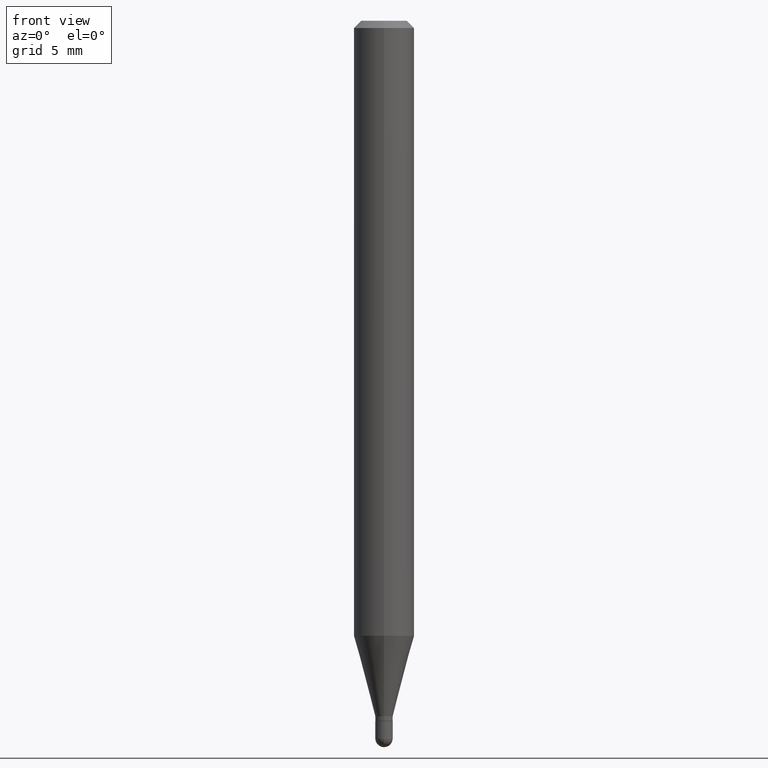
[diagram: clean part render]
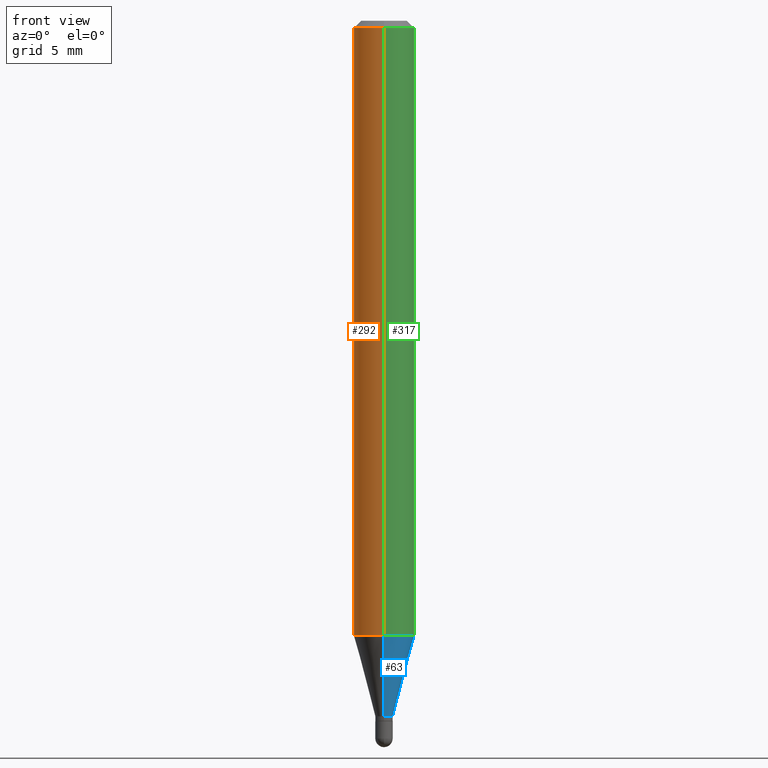
[diagram: same view with three faces highlighted in distinct colors, each labeled with its STEP entity id]
A machine part, front view with three faces highlighted in distinct colors.
Their STEP definitions:

[orange] entity #292 — the highlighted cylindrical surface (edge-blend (fillet) strip) has radius 1.5875 mm, axis along (-0, 0, 1).
#21 = AXIS2_PLACEMENT_3D ( 'NONE', #474, #358, #278 ) ;
#24 = CARTESIAN_POINT ( 'NONE',  ( -4.364351673553912750E-16, -0.06250000000000005551, -0.01499999999999979128 ) ) ;
#35 = CARTESIAN_POINT ( 'NONE',  ( 3.668220713917625548E-31, -5.237196940624055972E-17, -0.01500000000000000812 ) ) ;
#40 = ORIENTED_EDGE ( 'NONE', *, *, #200, .F. ) ;
#53 = VECTOR ( 'NONE', #494, 39.37007874015748143 ) ;
#100 = VERTEX_POINT ( 'NONE', #24 ) ;
#136 = EDGE_CURVE ( 'NONE', #236, #100, #328, .T. ) ;
#143 = CARTESIAN_POINT ( 'NONE',  ( 4.440892098500937762E-16, 0.06249999999999993755, -0.01500000000000022669 ) ) ;
#148 = CARTESIAN_POINT ( 'NONE',  ( -4.364351673553916201E-16, -0.06250000000000000000, 2.182165391926688591E-16 ) ) ;
#149 = DIRECTION ( 'NONE',  ( -6.982962677686265922E-15, -1.000000000000000000, 3.483106191921935554E-15 ) ) ;
#190 = ORIENTED_EDGE ( 'NONE', *, *, #502, .T. ) ;
#200 = EDGE_CURVE ( 'NONE', #305, #236, #421, .T. ) ;
#222 = EDGE_CURVE ( 'NONE', #433, #100, #455, .T. ) ;
#229 = CARTESIAN_POINT ( 'NONE',  ( 0.000000000000000000, 0.000000000000000000, 0.000000000000000000 ) ) ;
#230 = DIRECTION ( 'NONE',  ( -2.445480475945082204E-29, 3.491464627082701746E-15, 1.000000000000000000 ) ) ;
#236 = VERTEX_POINT ( 'NONE', #143 ) ;
#241 = CARTESIAN_POINT ( 'NONE',  ( -4.364351673553606573E-16, -0.06250000000000444089, -1.269923739063185453 ) ) ;
#249 = VECTOR ( 'NONE', #426, 39.37007874015748143 ) ;
#259 = CARTESIAN_POINT ( 'NONE',  ( 4.440892098500625669E-16, 0.06250000000000000000, -2.182165391926688591E-16 ) ) ;
#278 = DIRECTION ( 'NONE',  ( -6.982962677686265922E-15, -1.000000000000000000, 4.370956789862821150E-15 ) ) ;
#292 = ADVANCED_FACE ( 'NONE', ( #419 ), #341, .T. ) ;
#305 = VERTEX_POINT ( 'NONE', #382 ) ;
#328 = CIRCLE ( 'NONE', #437, 0.06250000000000000000 ) ;
#340 = CIRCLE ( 'NONE', #21, 0.06250000000000000000 ) ;
#341 = CYLINDRICAL_SURFACE ( 'NONE', #447, 0.06250000000000000000 ) ;
#358 = DIRECTION ( 'NONE',  ( -2.445480475945082204E-29, 3.491464627082701746E-15, 1.000000000000000000 ) ) ;
#381 = DIRECTION ( 'NONE',  ( -6.982962677686265922E-15, -1.000000000000000000, 3.491464627082701746E-15 ) ) ;
#382 = CARTESIAN_POINT ( 'NONE',  ( 4.440892098500933817E-16, 0.06249999999999555217, -1.269923739063185897 ) ) ;
#419 = FACE_OUTER_BOUND ( 'NONE', #469, .T. ) ;
#421 = LINE ( 'NONE', #259, #249 ) ;
#426 = DIRECTION ( 'NONE',  ( -2.445480475945082204E-29, 3.491464627082701746E-15, 1.000000000000000000 ) ) ;
#433 = VERTEX_POINT ( 'NONE', #241 ) ;
#435 = ORIENTED_EDGE ( 'NONE', *, *, #222, .T. ) ;
#437 = AXIS2_PLACEMENT_3D ( 'NONE', #35, #505, #149 ) ;
#447 = AXIS2_PLACEMENT_3D ( 'NONE', #229, #230, #381 ) ;
#455 = LINE ( 'NONE', #148, #53 ) ;
#469 = EDGE_LOOP ( 'NONE', ( #40, #190, #435, #508 ) ) ;
#474 = CARTESIAN_POINT ( 'NONE',  ( 3.105573709818197943E-29, -4.433893814031715891E-15, -1.269923739063185675 ) ) ;
#494 = DIRECTION ( 'NONE',  ( -2.445480475945082204E-29, 3.491464627082701746E-15, 1.000000000000000000 ) ) ;
#502 = EDGE_CURVE ( 'NONE', #305, #433, #340, .T. ) ;
#505 = DIRECTION ( 'NONE',  ( -2.445480475945082204E-29, 3.491464627082701746E-15, 1.000000000000000000 ) ) ;
#508 = ORIENTED_EDGE ( 'NONE', *, *, #136, .F. ) ;

[blue] entity #63 — the highlighted conical surface has half-angle 15 deg.
#14 = CARTESIAN_POINT ( 'NONE',  ( 3.511709963457139332E-29, -5.013743204490759827E-15, -1.436000000000000165 ) ) ;
#44 = VERTEX_POINT ( 'NONE', #283 ) ;
#63 = ADVANCED_FACE ( 'NONE', ( #410 ), #478, .T. ) ;
#74 = EDGE_CURVE ( 'NONE', #373, #305, #248, .T. ) ;
#114 = DIRECTION ( 'NONE',  ( -2.445480475945082204E-29, 3.491464627082701746E-15, 1.000000000000000000 ) ) ;
#121 = ORIENTED_EDGE ( 'NONE', *, *, #161, .F. ) ;
#128 = EDGE_LOOP ( 'NONE', ( #258, #332, #121, #416 ) ) ;
#129 = DIRECTION ( 'NONE',  ( -1.807323732225332900E-15, -0.2588190451025185745, 0.9659258262890689783 ) ) ;
#131 = DIRECTION ( 'NONE',  ( -2.445480475945082204E-29, 3.491464627082701746E-15, 1.000000000000000000 ) ) ;
#132 = DIRECTION ( 'NONE',  ( -2.445480475945082204E-29, 3.491464627082701746E-15, 1.000000000000000000 ) ) ;
#161 = EDGE_CURVE ( 'NONE', #433, #305, #498, .T. ) ;
#169 = DIRECTION ( 'NONE',  ( -6.982962677686265133E-15, -1.000000000000000000, 0.000000000000000000 ) ) ;
#183 = AXIS2_PLACEMENT_3D ( 'NONE', #188, #114, #457 ) ;
#188 = CARTESIAN_POINT ( 'NONE',  ( 3.105573709818197943E-29, -4.433893814031715891E-15, -1.269923739063185675 ) ) ;
#207 = LINE ( 'NONE', #362, #444 ) ;
#241 = CARTESIAN_POINT ( 'NONE',  ( -4.364351673553606573E-16, -0.06250000000000444089, -1.269923739063185453 ) ) ;
#248 = LINE ( 'NONE', #294, #321 ) ;
#258 = ORIENTED_EDGE ( 'NONE', *, *, #323, .T. ) ;
#266 = AXIS2_PLACEMENT_3D ( 'NONE', #14, #132, #482 ) ;
#283 = CARTESIAN_POINT ( 'NONE',  ( -1.256933281983171216E-16, -0.01800000000000493566, -1.436000000000000165 ) ) ;
#290 = AXIS2_PLACEMENT_3D ( 'NONE', #486, #131, #169 ) ;
#291 = DIRECTION ( 'NONE',  ( 1.839019923739603076E-15, 0.2588190451025253469, 0.9659258262890670910 ) ) ;
#294 = CARTESIAN_POINT ( 'NONE',  ( 1.278976924368525858E-16, 0.01799999999999490896, -1.436000000000000165 ) ) ;
#305 = VERTEX_POINT ( 'NONE', #382 ) ;
#321 = VECTOR ( 'NONE', #291, 39.37007874015748143 ) ;
#323 = EDGE_CURVE ( 'NONE', #44, #373, #499, .T. ) ;
#332 = ORIENTED_EDGE ( 'NONE', *, *, #74, .T. ) ;
#362 = CARTESIAN_POINT ( 'NONE',  ( -1.256933281983171216E-16, -0.01800000000000493566, -1.436000000000000165 ) ) ;
#370 = CARTESIAN_POINT ( 'NONE',  ( 2.859934511434732179E-16, 0.01799999999999490896, -1.436000000000000165 ) ) ;
#373 = VERTEX_POINT ( 'NONE', #370 ) ;
#382 = CARTESIAN_POINT ( 'NONE',  ( 4.440892098500933817E-16, 0.06249999999999555217, -1.269923739063185897 ) ) ;
#410 = FACE_OUTER_BOUND ( 'NONE', #128, .T. ) ;
#416 = ORIENTED_EDGE ( 'NONE', *, *, #483, .F. ) ;
#433 = VERTEX_POINT ( 'NONE', #241 ) ;
#444 = VECTOR ( 'NONE', #129, 39.37007874015748143 ) ;
#457 = DIRECTION ( 'NONE',  ( -6.982962677686265922E-15, -1.000000000000000000, 4.370956789862821150E-15 ) ) ;
#478 = CONICAL_SURFACE ( 'NONE', #266, 0.01799999999999992231, 0.2617993877991506846 ) ;
#482 = DIRECTION ( 'NONE',  ( -6.982962677686265133E-15, -1.000000000000000000, 0.000000000000000000 ) ) ;
#483 = EDGE_CURVE ( 'NONE', #44, #433, #207, .T. ) ;
#486 = CARTESIAN_POINT ( 'NONE',  ( 3.511709963457139332E-29, -5.013743204490759827E-15, -1.436000000000000165 ) ) ;
#498 = CIRCLE ( 'NONE', #183, 0.06250000000000000000 ) ;
#499 = CIRCLE ( 'NONE', #290, 0.01799999999999992231 ) ;

[green] entity #317 — the highlighted cylindrical surface (edge-blend (fillet) strip) has radius 1.5875 mm, axis along (-0, 0, 1).
#3 = ORIENTED_EDGE ( 'NONE', *, *, #67, .F. ) ;
#8 = EDGE_LOOP ( 'NONE', ( #445, #385, #3, #313 ) ) ;
#24 = CARTESIAN_POINT ( 'NONE',  ( -4.364351673553912750E-16, -0.06250000000000005551, -0.01499999999999979128 ) ) ;
#31 = CARTESIAN_POINT ( 'NONE',  ( 0.000000000000000000, 0.000000000000000000, 0.000000000000000000 ) ) ;
#47 = AXIS2_PLACEMENT_3D ( 'NONE', #401, #166, #51 ) ;
#51 = DIRECTION ( 'NONE',  ( -6.982962677686265922E-15, -1.000000000000000000, 3.483106191921935554E-15 ) ) ;
#53 = VECTOR ( 'NONE', #494, 39.37007874015748143 ) ;
#67 = EDGE_CURVE ( 'NONE', #100, #236, #425, .T. ) ;
#100 = VERTEX_POINT ( 'NONE', #24 ) ;
#110 = CYLINDRICAL_SURFACE ( 'NONE', #322, 0.06250000000000000000 ) ;
#114 = DIRECTION ( 'NONE',  ( -2.445480475945082204E-29, 3.491464627082701746E-15, 1.000000000000000000 ) ) ;
#143 = CARTESIAN_POINT ( 'NONE',  ( 4.440892098500937762E-16, 0.06249999999999993755, -0.01500000000000022669 ) ) ;
#148 = CARTESIAN_POINT ( 'NONE',  ( -4.364351673553916201E-16, -0.06250000000000000000, 2.182165391926688591E-16 ) ) ;
#152 = DIRECTION ( 'NONE',  ( -6.982962677686265922E-15, -1.000000000000000000, 3.491464627082701746E-15 ) ) ;
#161 = EDGE_CURVE ( 'NONE', #433, #305, #498, .T. ) ;
#166 = DIRECTION ( 'NONE',  ( -2.445480475945082204E-29, 3.491464627082701746E-15, 1.000000000000000000 ) ) ;
#181 = FACE_OUTER_BOUND ( 'NONE', #8, .T. ) ;
#183 = AXIS2_PLACEMENT_3D ( 'NONE', #188, #114, #457 ) ;
#188 = CARTESIAN_POINT ( 'NONE',  ( 3.105573709818197943E-29, -4.433893814031715891E-15, -1.269923739063185675 ) ) ;
#200 = EDGE_CURVE ( 'NONE', #305, #236, #421, .T. ) ;
#222 = EDGE_CURVE ( 'NONE', #433, #100, #455, .T. ) ;
#236 = VERTEX_POINT ( 'NONE', #143 ) ;
#241 = CARTESIAN_POINT ( 'NONE',  ( -4.364351673553606573E-16, -0.06250000000000444089, -1.269923739063185453 ) ) ;
#249 = VECTOR ( 'NONE', #426, 39.37007874015748143 ) ;
#259 = CARTESIAN_POINT ( 'NONE',  ( 4.440892098500625669E-16, 0.06250000000000000000, -2.182165391926688591E-16 ) ) ;
#265 = DIRECTION ( 'NONE',  ( -2.445480475945082204E-29, 3.491464627082701746E-15, 1.000000000000000000 ) ) ;
#305 = VERTEX_POINT ( 'NONE', #382 ) ;
#313 = ORIENTED_EDGE ( 'NONE', *, *, #222, .F. ) ;
#317 = ADVANCED_FACE ( 'NONE', ( #181 ), #110, .T. ) ;
#322 = AXIS2_PLACEMENT_3D ( 'NONE', #31, #265, #152 ) ;
#382 = CARTESIAN_POINT ( 'NONE',  ( 4.440892098500933817E-16, 0.06249999999999555217, -1.269923739063185897 ) ) ;
#385 = ORIENTED_EDGE ( 'NONE', *, *, #200, .T. ) ;
#401 = CARTESIAN_POINT ( 'NONE',  ( 3.668220713917625548E-31, -5.237196940624055972E-17, -0.01500000000000000812 ) ) ;
#421 = LINE ( 'NONE', #259, #249 ) ;
#425 = CIRCLE ( 'NONE', #47, 0.06250000000000000000 ) ;
#426 = DIRECTION ( 'NONE',  ( -2.445480475945082204E-29, 3.491464627082701746E-15, 1.000000000000000000 ) ) ;
#433 = VERTEX_POINT ( 'NONE', #241 ) ;
#445 = ORIENTED_EDGE ( 'NONE', *, *, #161, .T. ) ;
#455 = LINE ( 'NONE', #148, #53 ) ;
#457 = DIRECTION ( 'NONE',  ( -6.982962677686265922E-15, -1.000000000000000000, 4.370956789862821150E-15 ) ) ;
#494 = DIRECTION ( 'NONE',  ( -2.445480475945082204E-29, 3.491464627082701746E-15, 1.000000000000000000 ) ) ;
#498 = CIRCLE ( 'NONE', #183, 0.06250000000000000000 ) ;